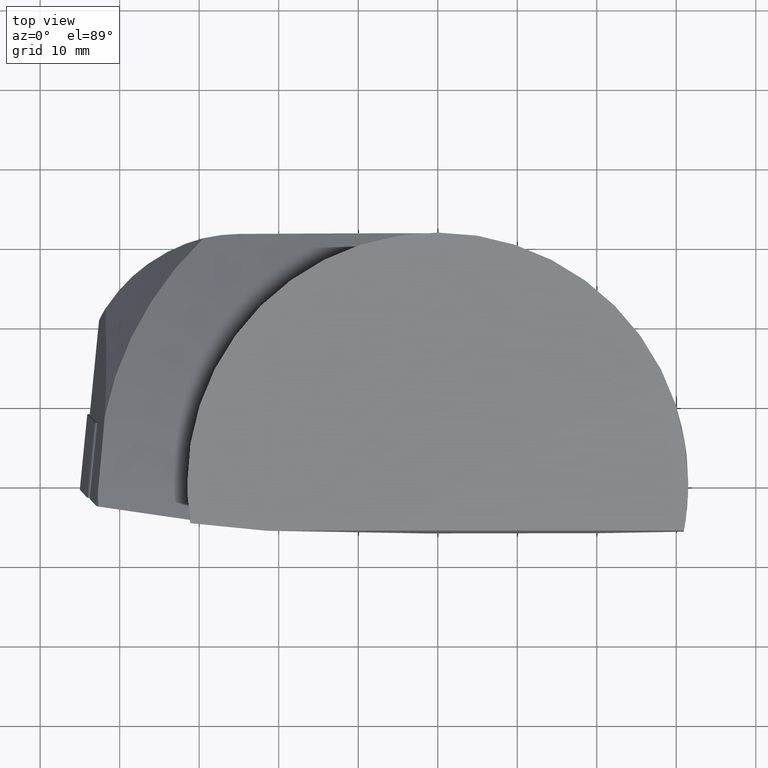
[diagram: clean part render]
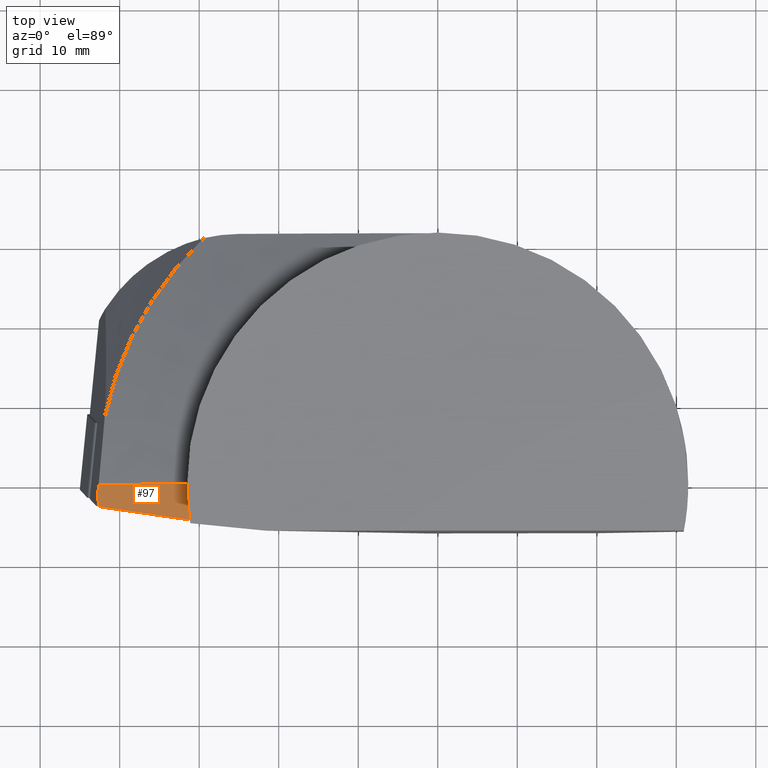
[diagram: same view with one face highlighted and labeled with its STEP entity id]
A machine part, top view. The second image highlights one B-rep face of the part: STEP entity #97.
In plain terms, the highlighted conical surface has half-angle 60 deg.
Its self-contained STEP definition (entity closure, byte-faithful):
#97=ADVANCED_FACE('',(#152),#153,.T.);
#152=FACE_OUTER_BOUND('',#216,.T.);
#153=CONICAL_SURFACE('',#217,33.1071076825604,1.0471975488034);
#216=EDGE_LOOP('',(#432,#433,#434,#435,#436));
#217=AXIS2_PLACEMENT_3D('',#437,#438,#439);
#432=ORIENTED_EDGE('',*,*,#582,.T.);
#433=ORIENTED_EDGE('',*,*,#544,.F.);
#434=ORIENTED_EDGE('',*,*,#584,.T.);
#435=ORIENTED_EDGE('',*,*,#555,.F.);
#436=ORIENTED_EDGE('',*,*,#585,.F.);
#437=CARTESIAN_POINT('',(2.22044604925031E-014,7.7715611723761E-015,-5.92786404030881));
#438=DIRECTION('',(-0.0,0.0,-1.0));
#439=DIRECTION('',(-0.0725374939448469,0.997365686181453,0.0));
#544=EDGE_CURVE('',#656,#658,#659,.T.);
#555=EDGE_CURVE('',#677,#679,#680,.T.);
#582=EDGE_CURVE('',#715,#658,#724,.T.);
#584=EDGE_CURVE('',#656,#679,#726,.T.);
#585=EDGE_CURVE('',#715,#677,#727,.T.);
#656=VERTEX_POINT('',#823);
#658=VERTEX_POINT('',#825);
#659=CIRCLE('',#826,70.9683754110374);
#677=VERTEX_POINT('',#858);
#679=VERTEX_POINT('',#860);
#680=CIRCLE('',#861,1523.89045163472);
#715=VERTEX_POINT('',#951);
#724=LINE('',#968,#969);
#726=CIRCLE('',#971,42.7583302491977);
#727=CIRCLE('',#972,31.5);
#823=CARTESIAN_POINT('',(-42.746324705801,-1.01317809179193,-11.5));
#825=CARTESIAN_POINT('',(-42.649112442664,4.617897E-015,-11.4369430699974));
#826=AXIS2_PLACEMENT_3D('',#1055,#1056,#1057);
#858=CARTESIAN_POINT('',(-31.1685136542487,-4.5578236675974,-5.0));
#860=CARTESIAN_POINT('',(-42.6685751760753,-2.7690247638962,-11.5));
#861=AXIS2_PLACEMENT_3D('',#1075,#1076,#1077);
#951=CARTESIAN_POINT('',(-31.5,6.569822E-015,-5.0));
#968=CARTESIAN_POINT('',(-31.5,6.569822E-015,-5.0));
#969=VECTOR('',#1118,12.8738861399949);
#971=AXIS2_PLACEMENT_3D('',#1122,#1123,#1124);
#972=AXIS2_PLACEMENT_3D('',#1125,#1126,#1127);
#1055=CARTESIAN_POINT('',(-48.7621248733058,4.46495879876859,-82.0004288854675));
#1056=DIRECTION('',(-0.991771345779415,0.089458744898773,0.0915790950600922));
#1057=DIRECTION('',(0.0847673366152499,-0.077191239884414,0.993406266906075));
#1075=CARTESIAN_POINT('',(719.023280232973,52.5862546943321,-1330.21278867807));
#1076=DIRECTION('',(-0.098410243390943,-0.990268068747769,-0.0984102434419309));
#1077=DIRECTION('',(-0.492287219912999,-0.037498809905023,0.869624707771138));
#1118=DIRECTION('',(-0.866025403784441,-1.51619E-016,-0.499999999999996));
#1122=CARTESIAN_POINT('',(0.0,4.494702E-015,-11.5));
#1123=DIRECTION('',(0.0,0.0,1.0));
#1124=DIRECTION('',(-1.0,0.0,0.0));
#1125=CARTESIAN_POINT('',(0.0,1.608123E-015,-5.0));
#1126=DIRECTION('',(0.0,0.0,1.0));
#1127=DIRECTION('',(-1.0,0.0,0.0));